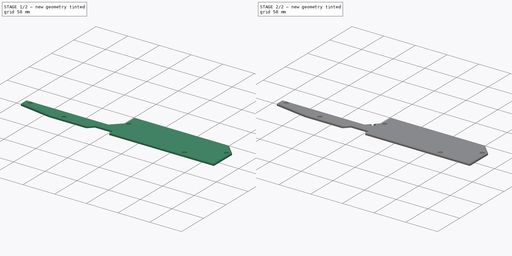
[diagram: build sequence overview — one tinted view per stage of 2, left to right]
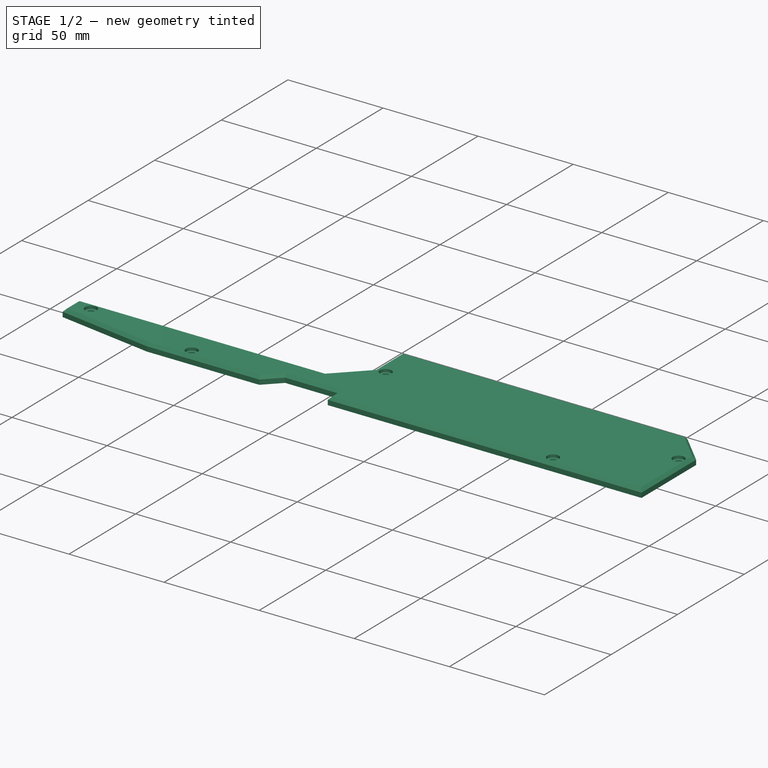
[diagram: stage 1 of 2 — iso view after this stage's code; geometry added in this stage tinted green]
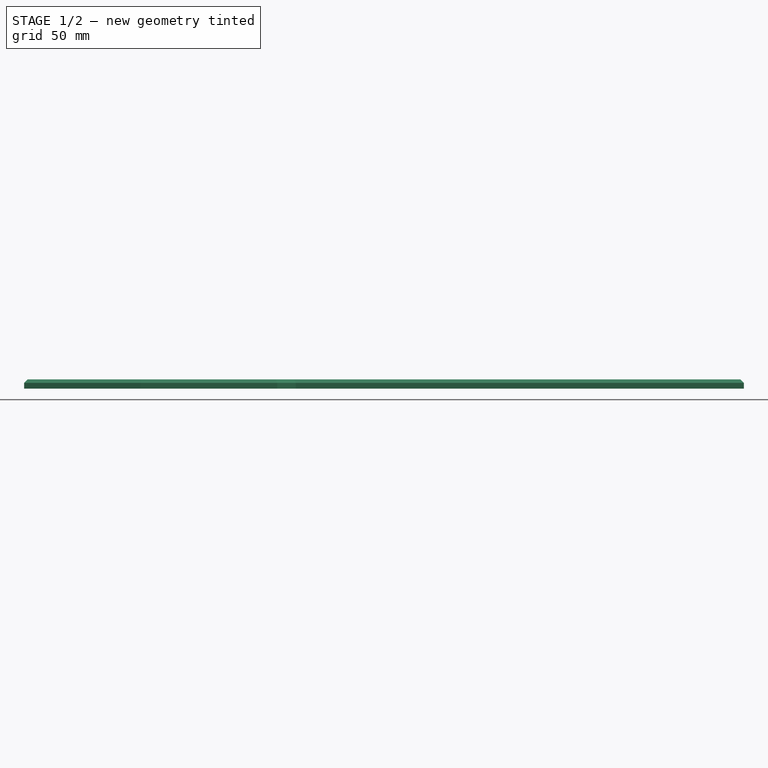
[diagram: stage 1 of 2 — front view after this stage's code; geometry added in this stage tinted green]
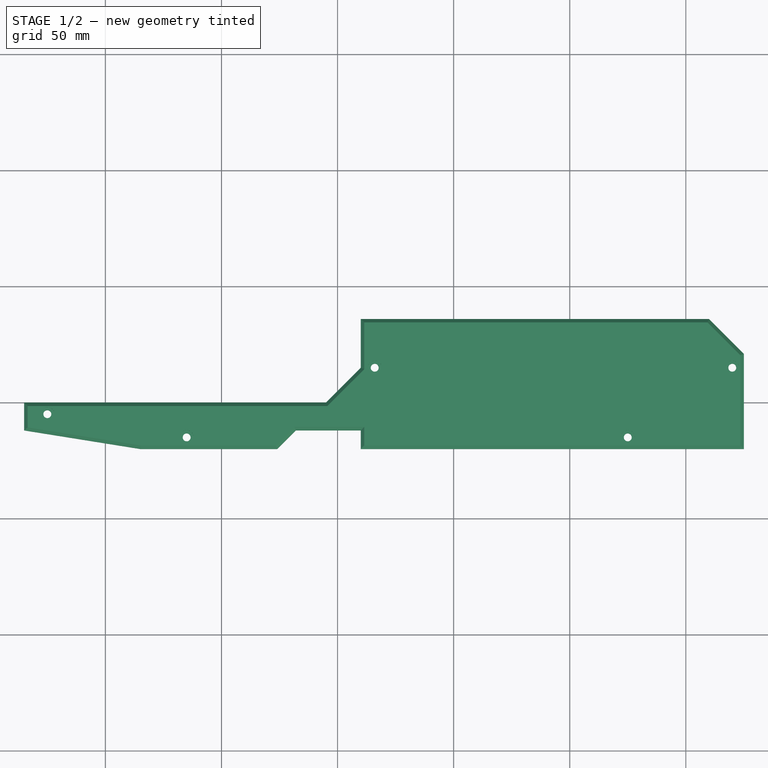
[diagram: stage 1 of 2 — top view after this stage's code; geometry added in this stage tinted green]
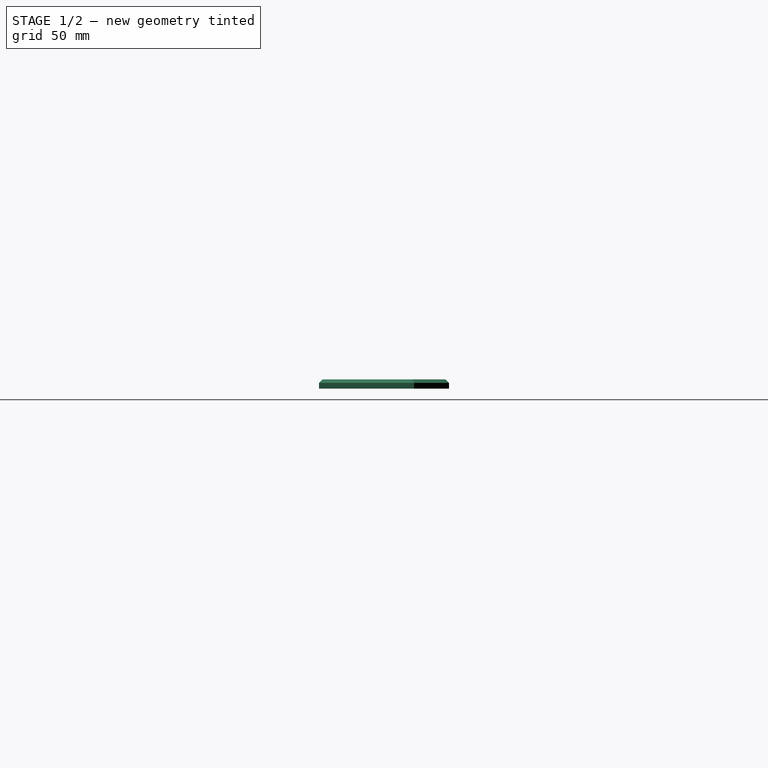
[diagram: stage 1 of 2 — right view after this stage's code; geometry added in this stage tinted green]
FCSTD DOCUMENT  (FreeCAD 1.0R39109 (Git))
Label: SidePlateLeft.stl
License: All rights reserved
LicenseURL: http://en.wikipedia.org/wiki/All_rights_reserved
objects: App::Link×1, Part::Mirroring×1, PartDesign::FeatureBase×1, Sketcher::SketchObject×1, PartDesign::Pocket×1, PartDesign::Body×1, App::Part×1
note: 9 computed .brp shape members not serialized (recipe doc carries the construction recipe); baked Part::Feature solids carry a one-line shape summary decoded from their .brp
EXTERNAL_REF file=SidePlateRight.stl.FCStd obj=Body

FEATURE [App::Link] Link  label="SidePlateRight"
  LinkedObject = -> <external SidePlateRight.stl.FCStd>#Body
FEATURE [Part::Mirroring] Part__Mirroring  label="SidePlateLeft"
  Base = (0,0,0)
  Normal = (0,1,0)
  Source = -> Link
FEATURE [PartDesign::FeatureBase] BaseFeature
  BaseFeature = -> Part__Mirroring
  Suppressed = false
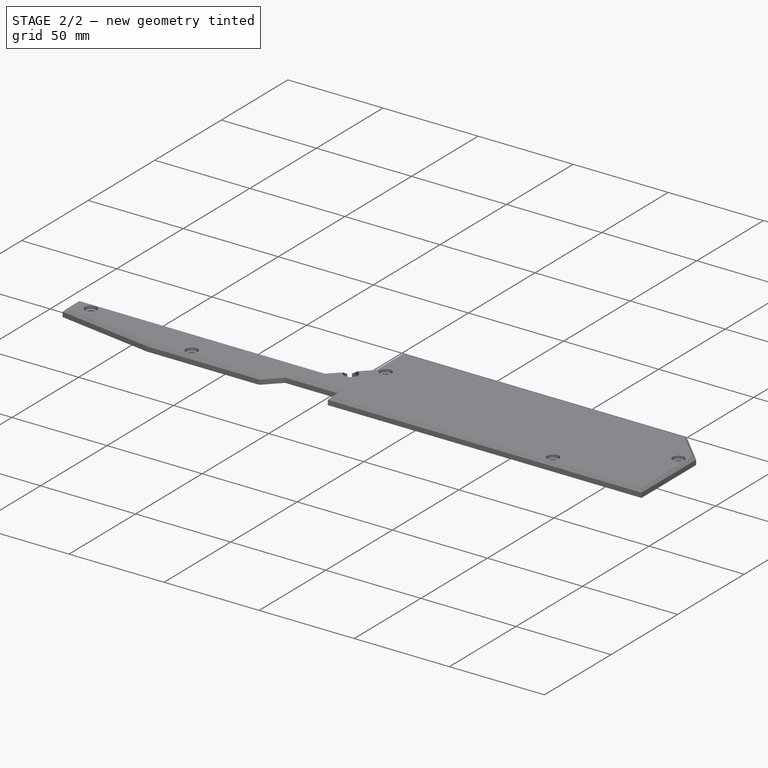
[diagram: stage 2 of 2 — iso view after this stage's code; geometry added in this stage tinted green]
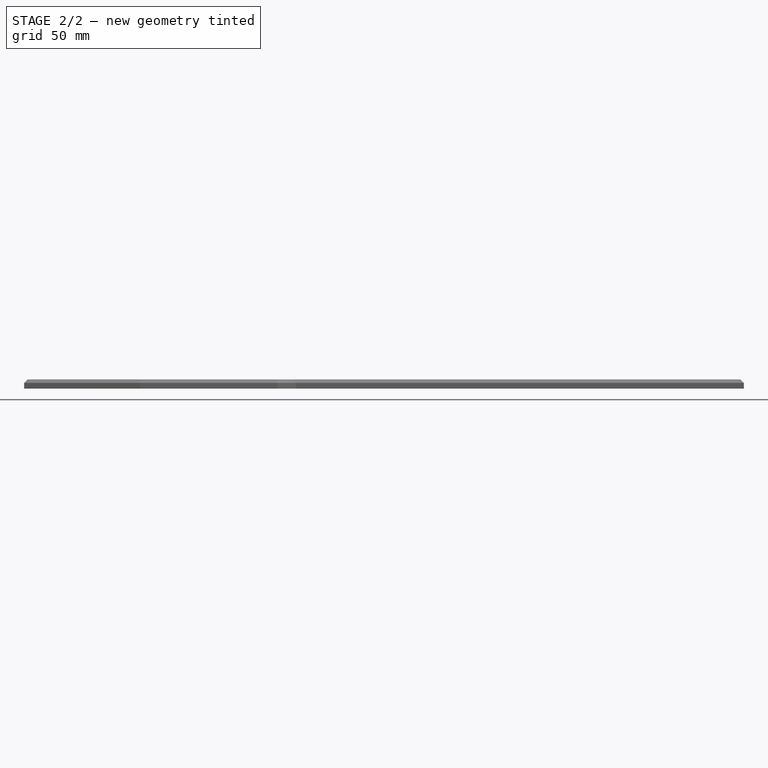
[diagram: stage 2 of 2 — front view after this stage's code; geometry added in this stage tinted green]
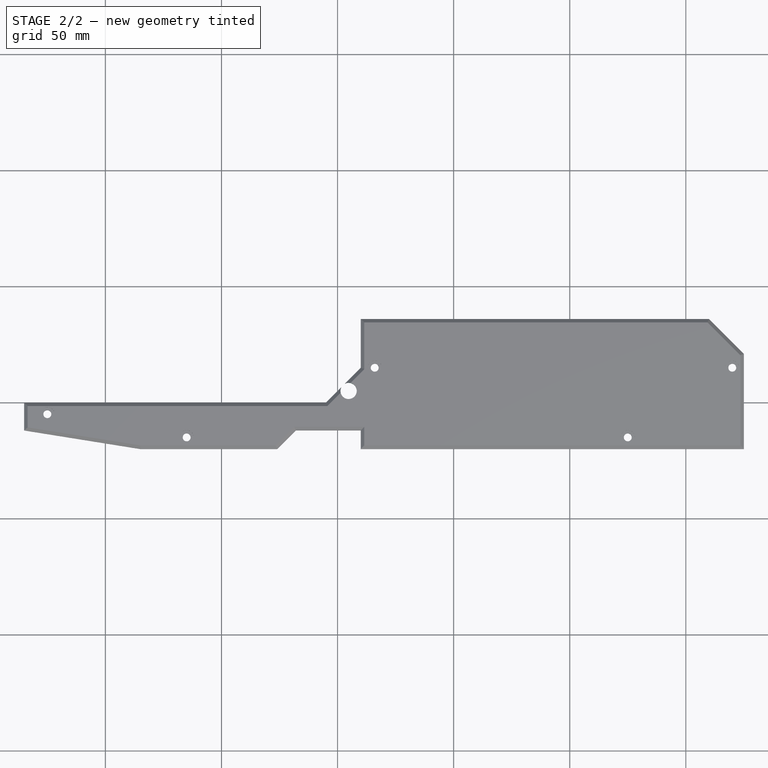
[diagram: stage 2 of 2 — top view after this stage's code; geometry added in this stage tinted green]
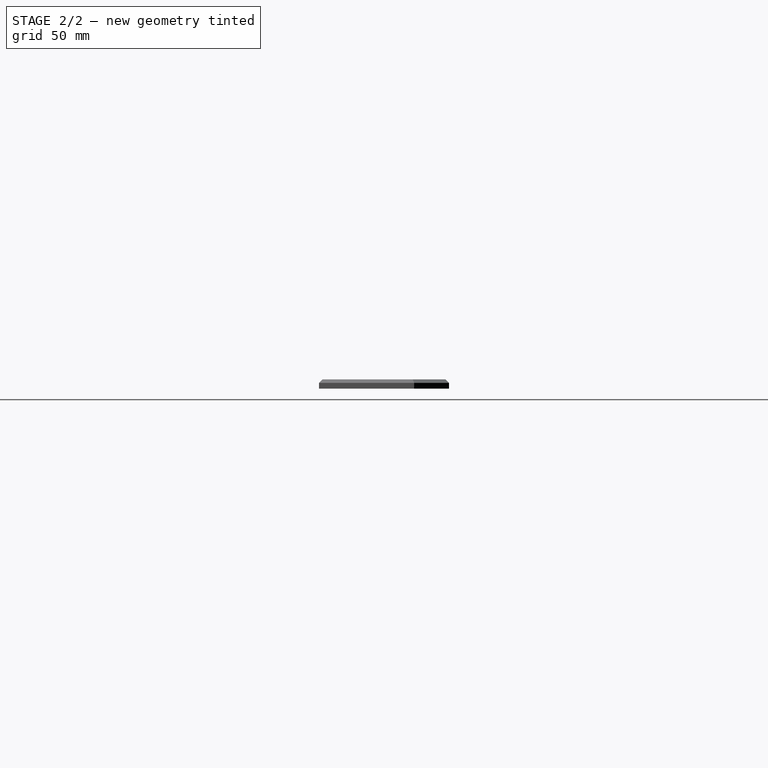
[diagram: stage 2 of 2 — right view after this stage's code; geometry added in this stage tinted green]
FEATURE [Sketcher::SketchObject] Sketch
  ArcFitTolerance = 1e-06
  AttachmentSupport = -> [XY_Plane001]
  FullyConstrained = true
  MakeInternals = false
  MapMode = 5
  sketch-geometry (1):
    g0: Circle CenterX=4.75 CenterY=-45 CenterZ=0 NormalX=0 NormalY=0 NormalZ=1 AngleXU=0 Radius=3.5
  constraints (3):
    c: Diameter(g0) = 7
    c: DistanceY(g0,g-1) = 45
    c: Distance(g0,g-2) = 4.75
FEATURE [PartDesign::Pocket] Pocket
  BaseFeature = -> BaseFeature
  Direction = (0,0,-1)
  Length = 5
  Length2 = 5
  Midplane = true
  Profile = -> Sketch
  ReferenceAxis = -> Sketch [N_Axis]
  Refine = true
  Suppressed = false
  Type = 1
FEATURE [PartDesign::Body] Body
  AllowCompound = false
  BaseFeature = -> Part__Mirroring
  Group = -> [BaseFeature,Sketch,Pocket]
  Origin = -> Origin001
  Tip = -> Pocket
FEATURE [App::Part] Part  label="SidePlateLeft.stl"
  Group = -> [Link,Part__Mirroring,Body]
  Origin = -> Origin

RESOLVED EXTERNAL PARTS (link-assembly join: the EXTERNAL_REF files above that resolve inside this repo's crawl, each included once):
---- part SidePlateRight.stl.FCStd = doc fcstd_58ffd16d6dbb ----
FCSTD DOCUMENT  (FreeCAD 1.0R39109 (Git))
Label: SidePlateRight.stl
License: All rights reserved
LicenseURL: http://en.wikipedia.org/wiki/All_rights_reserved
objects: Sketcher::SketchObject×2, PartDesign::Pad×1, PartDesign::Chamfer×1, PartDesign::Hole×1, PartDesign::Body×1, App::Part×1
note: 14 computed .brp shape members not serialized (recipe doc carries the construction recipe); baked Part::Feature solids carry a one-line shape summary decoded from their .brp

FEATURE [Sketcher::SketchObject] Sketch
  ArcFitTolerance = 1e-06
  AttachmentSupport = -> [XY_Plane002]
  FullyConstrained = true
  MakeInternals = false
  MapMode = 5
  sketch-geometry (14):
    g0: LineSegment StartX=-135 StartY=62 StartZ=0 EndX=-135 EndY=50 EndZ=0
    g1: LineSegment StartX=-135 StartY=50 StartZ=0 EndX=-20 EndY=50 EndZ=0
    g2: LineSegment StartX=-20 StartY=50 StartZ=0 EndX=-5 EndY=35 EndZ=0
    g3: LineSegment StartX=10 StartY=14 StartZ=0 EndX=160 EndY=14 EndZ=0
    g4: LineSegment StartX=160 StartY=14 StartZ=0 EndX=175 EndY=29 EndZ=0
    g5: LineSegment StartX=175 StartY=29 StartZ=0 EndX=175 EndY=70 EndZ=0
    g6: LineSegment StartX=-85 StartY=70 StartZ=0 EndX=-135 EndY=62 EndZ=0
    g7: LineSegment StartX=-85 StartY=70 StartZ=0 EndX=-26 EndY=70 EndZ=0
    g8: LineSegment StartX=-26 StartY=70 StartZ=0 EndX=-18 EndY=62 EndZ=0
    g9: LineSegment StartX=-18 StartY=62 StartZ=0 EndX=10 EndY=62 EndZ=0
    g10: LineSegment StartX=10 StartY=62 StartZ=0 EndX=10 EndY=70 EndZ=0
    g11: LineSegment StartX=175 StartY=70 StartZ=0 EndX=10 EndY=70 EndZ=0
    g12: LineSegment StartX=-5 StartY=35 StartZ=0 EndX=10 EndY=35 EndZ=0
    g13: LineSegment StartX=10 StartY=35 StartZ=0 EndX=10 EndY=14 EndZ=0
  constraints (42):
    c: Vertical(g0)
    c: Coincident(g0,g1)
    c: Horizontal(g1)
    c: Coincident(g1,g2)
    c: Horizontal(g3)
    c: Coincident(g3,g4)
    c: Coincident(g4,g5)
    c: Vertical(g5)
    c: Coincident(g6,g0)
    c: DistanceX(g0,g-1) = 135
    c: DistanceY(g0,g0) = 12
    c: DistanceY(g-1,g0) = 50
    c: DistanceX(g-1,g3) = 10
    c: DistanceY(g-1,g2) = 35
    c: DistanceY(g-1,g3) = 14
    c: DistanceX(g-1,g4) = 175
    c: DistanceX(g3,g4) = 15
    c: Angle(g3,g4) = 0.785398
    c: DistanceY(g-1,g5) = 70
    c: DistanceX(g0,g6) = 50
    c: Coincident(g7,g6)
    c: Horizontal(g7)
    c: Coincident(g8,g7)
    c: Coincident(g9,g8)
    c: Horizontal(g9)
    c: Coincident(g11,g5)
    c: Coincident(g11,g10)
    c: Horizontal(g11)
    c: Vertical(g10)
    c: DistanceX(g-1,g10) = 10
    c: Coincident(g9,g10)
    c: DistanceY(g10,g10) = 8
    c: Horizontal(g7,g10)
    c: DistanceX(g8,g-1) = 18
    c: Angle(g9,g8) = 2.35619
    c: Angle(g2,g1) = 0.785398
    c: Coincident(g12,g2)
    c: Horizontal(g12)
    c: Coincident(g13,g12)
    c: Coincident(g13,g3)
    c: Vertical(g13)
    c: DistanceX(g12,g12) = 15
FEATURE [PartDesign::Pad] Pad
  Direction = (0,0,1)
  Length = 4
  Length2 = 10
  Profile = -> Sketch
  ReferenceAxis = -> Sketch [N_Axis]
  Refine = true
  Suppressed = false
  Type = 0
FEATURE [PartDesign::Chamfer] Chamfer
  Angle = 45
  Base = -> Pad [Face16]
  BaseFeature = -> Pad
  ChamferType = 0
  FlipDirection = false
  Refine = true
  Size = 1.5
  Size2 = 1
  SupportTransform = false
  Suppressed = false
  UseAllEdges = false
FEATURE [Sketcher::SketchObject] Sketch001
  ArcFitTolerance = 1e-06
  AttachmentOffset = pos=(0,0,10) rot=(0,0,1;0rad)
  AttachmentSupport = -> [XY_Plane002]
  FullyConstrained = true
  MakeInternals = false
  MapMode = 5
  Placement = pos=(0,0,10) rot=(0,0,1;0rad)
  sketch-geometry (5):
    g0: Circle CenterX=-125 CenterY=55 CenterZ=0 NormalX=0 NormalY=0 NormalZ=1 AngleXU=0 Radius=1.5
    g1: Circle CenterX=-65 CenterY=65 CenterZ=0 NormalX=0 NormalY=0 NormalZ=1 AngleXU=0 Radius=1.5
    g2: Circle CenterX=16 CenterY=35 CenterZ=0 NormalX=0 NormalY=0 NormalZ=1 AngleXU=0 Radius=1.5
    g3: Circle CenterX=125 CenterY=65 CenterZ=0 NormalX=0 NormalY=0 NormalZ=1 AngleXU=0 Radius=1.5
    g4: Circle CenterX=170 CenterY=35 CenterZ=0 NormalX=0 NormalY=0 NormalZ=1 AngleXU=0 Radius=1.5
  constraints (15):
    c: DistanceX(g-1,g4) = 170
    c: DistanceY(g-1,g4) = 35
    c: DistanceY(g-1,g3) = 65
    c: DistanceX(g-1,g3) = 125
    c: DistanceX(g-1,g2) = 16
    c: DistanceY(g-1,g2) = 35
    c: DistanceX(g1,g-1) = 65
    c: DistanceY(g-1,g1) = 65
    c: DistanceX(g0,g-1) = 125
    c: DistanceY(g-1,g0) = 55
    c: Equal(g0,g1)
    c: Equal(g1,g2)
    c: Equal(g2,g4)
    c: Equal(g4,g3)
    c: Diameter(g4) = 3
FEATURE [PartDesign::Hole] Hole
  BaseFeature = -> Chamfer
  CustomThreadClearance = 0
  Depth = 25
  DepthType = 0
  Diameter = 3.4
  DrillForDepth = false
  DrillPoint = 1
  DrillPointAngle = 118
  HoleCutCountersinkAngle = 90
  HoleCutCustomValues = false
  HoleCutDepth = 7.5
  HoleCutDiameter = 6.1
  HoleCutType = 1
  ModelThread = false
  Profile = -> Sketch001
  Refine = true
  Suppressed = false
  Tapered = false
  TaperedAngle = 90
  ThreadClass = 0
  ThreadDepth = 25
  ThreadDepthType = 0
  ThreadDirection = 0
  ThreadFit = 0
  ThreadSize = 9
  ThreadType = 1
  Threaded = false
  UseCustomThreadClearance = false
FEATURE [PartDesign::Body] Body  label="SidePlateRight"
  AllowCompound = false
  Group = -> [Sketch,Pad,Chamfer,Sketch001,Hole]
  Origin = -> Origin002
  Tip = -> Hole
FEATURE [App::Part] Part001  label="SidePlateRight.stl"
  Group = -> [Body]
  Origin = -> Origin001
  Placement = pos=(0,0,9) rot=(0,0,1;0rad)
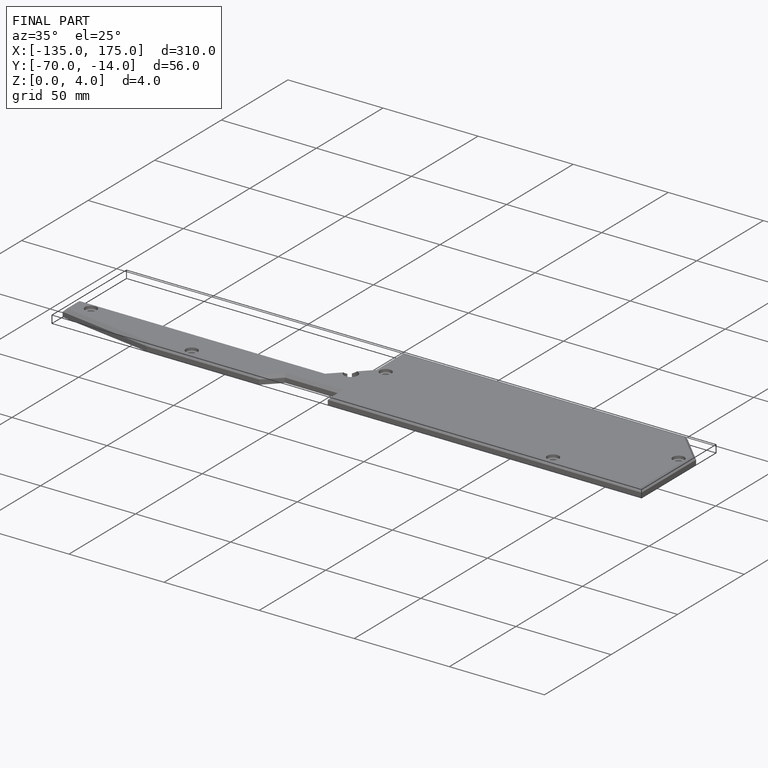
[diagram: finished part — iso view with bounding-box wireframe]
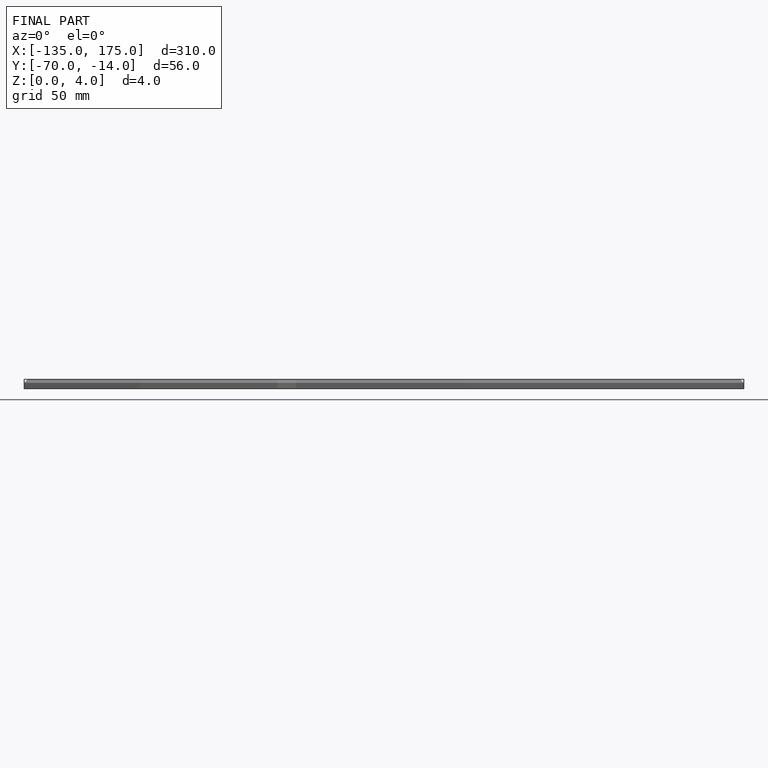
[diagram: finished part — front view with bounding-box wireframe]
